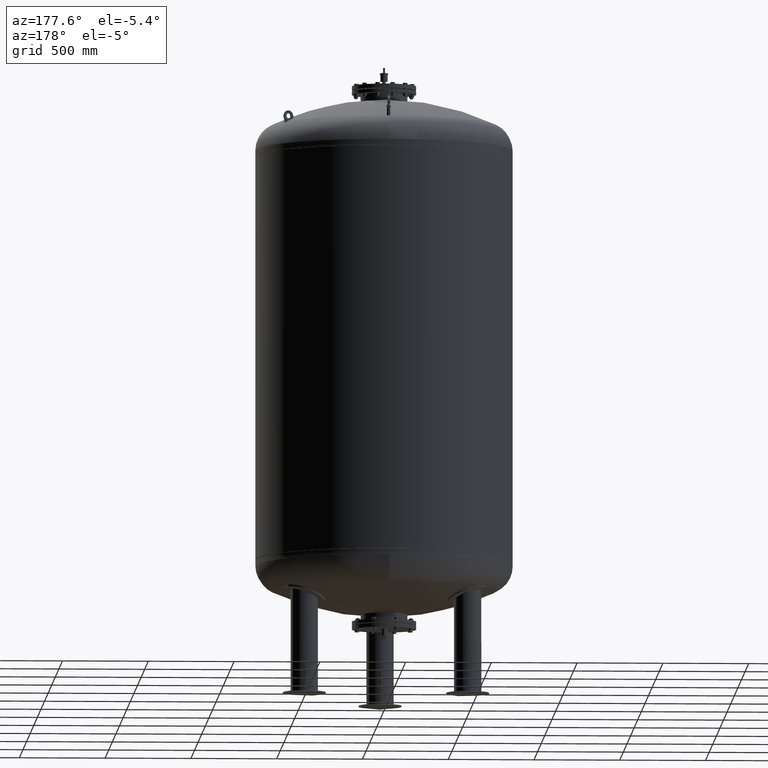
[diagram: clean part render]
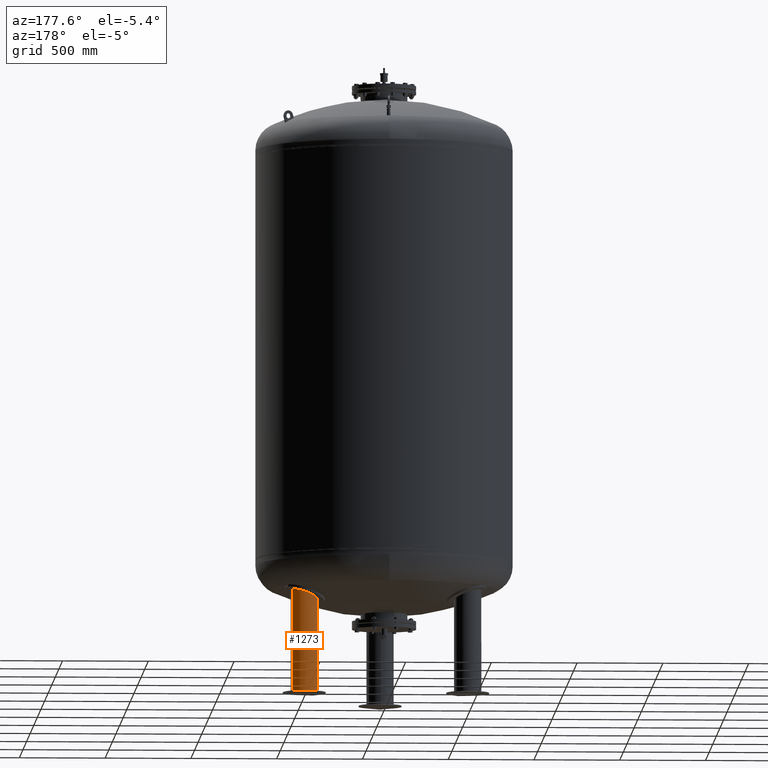
[diagram: same view with one face highlighted and labeled with its STEP entity id]
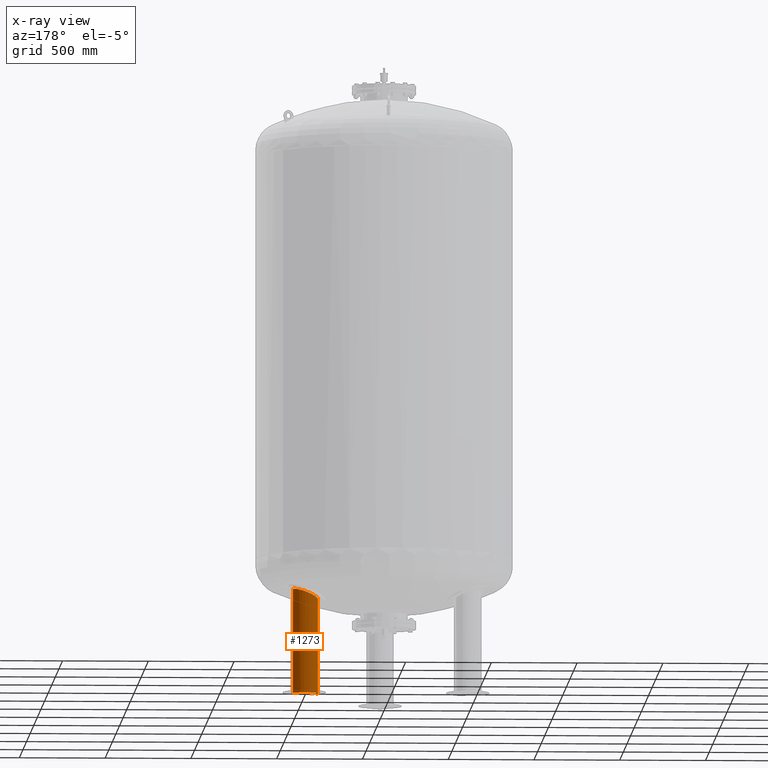
[diagram: x-ray of the same camera — body ghosted, the highlighted face saturated]
A machine part, auxiliary view. The second image highlights one B-rep face of the part: STEP entity #1273.
The next image is the same camera in x-ray: the body ghosted, the highlighted face saturated — about 0% of this face is hidden behind the body in this view.
In plain terms, the highlighted cylindrical surface (edge-blend (fillet) strip) has radius 79.5 mm, axis along (-0, 0, -1).
Its self-contained STEP definition (entity closure, byte-faithful):
#1207=CARTESIAN_POINT('',(476.313972081441250,274.999999999999940,15.815585141290533));
#1208=DIRECTION('',(-9.184851E-017,1.590863E-016,-1.0));
#1209=DIRECTION('',(0.866025403784439,0.500000000000000,0.0));
#1210=AXIS2_PLACEMENT_3D('',#1207,#1208,#1209);
#1211=CYLINDRICAL_SURFACE('',#1210,79.500000000000000);
#1212=CARTESIAN_POINT('',(545.162991682304100,314.749999999999940,11.631170282581067));
#1213=VERTEX_POINT('',#1212);
#1214=CARTESIAN_POINT('',(545.162991682304780,314.750000000000170,619.974328976416250));
#1215=VERTEX_POINT('',#1214);
#1216=CARTESIAN_POINT('',(545.162991682304100,314.749999999999940,11.631170282581067));
#1217=DIRECTION('',(0.0,0.0,1.0));
#1218=VECTOR('',#1217,608.343158693835220);
#1219=LINE('',#1216,#1218);
#1220=EDGE_CURVE('',#1213,#1215,#1219,.T.);
#1221=ORIENTED_EDGE('',*,*,#1220,.F.);
#1222=CARTESIAN_POINT('',(407.464952480578400,235.249999999999940,11.631170282581067));
#1223=VERTEX_POINT('',#1222);
#1224=CARTESIAN_POINT('',(476.313972081441250,274.999999999999940,11.631170282581067));
#1225=DIRECTION('',(0.0,0.0,-1.0));
#1226=DIRECTION('',(0.866025403784439,0.500000000000000,0.0));
#1227=AXIS2_PLACEMENT_3D('',#1224,#1225,#1226);
#1228=CIRCLE('',#1227,79.500000000000000);
#1229=EDGE_CURVE('',#1223,#1213,#1228,.T.);
#1230=ORIENTED_EDGE('',*,*,#1229,.F.);
#1231=CARTESIAN_POINT('',(407.464952480578400,235.249999999999830,557.801446445446690));
#1232=VERTEX_POINT('',#1231);
#1233=CARTESIAN_POINT('',(407.464952480578400,235.249999999999940,11.631170282581067));
#1234=DIRECTION('',(0.0,0.0,1.0));
#1235=VECTOR('',#1234,546.170276162865660);
#1236=LINE('',#1233,#1235);
#1237=EDGE_CURVE('',#1223,#1232,#1236,.T.);
#1238=ORIENTED_EDGE('',*,*,#1237,.T.);
#1239=CARTESIAN_POINT('',(435.923993297311600,343.475540259405990,588.259208461118310));
#1240=VERTEX_POINT('',#1239);
#1241=CARTESIAN_POINT('',(407.464952480578400,235.249999999999830,557.801446445446690));
#1242=CARTESIAN_POINT('',(403.404620725765540,242.282700894921050,557.801446445446690));
#1243=CARTESIAN_POINT('',(400.451610787080200,249.885975801156520,558.277369662588170));
#1244=CARTESIAN_POINT('',(396.597055088747990,267.270620755335590,560.328261777430270));
#1245=CARTESIAN_POINT('',(396.270319464510980,276.954377197880150,562.075596332598020));
#1246=CARTESIAN_POINT('',(399.072489778784760,296.341456745020760,566.734659420112730));
#1247=CARTESIAN_POINT('',(402.373919211337180,305.818108910622580,569.661195647944850));
#1248=CARTESIAN_POINT('',(412.496769615312990,323.583126452498620,576.486089468713540));
#1249=CARTESIAN_POINT('',(419.500370050858520,331.582796994882020,580.391859104990320));
#1250=CARTESIAN_POINT('',(430.379304327032230,339.969799272506860,585.699021239809100));
#1251=CARTESIAN_POINT('',(433.101443881988190,341.810672620973430,586.978453284904280));
#1252=CARTESIAN_POINT('',(435.923993297311600,343.475540259405990,588.259208461118310));
#1253=B_SPLINE_CURVE_WITH_KNOTS('',3,(#1241,#1242,#1243,#1244,#1245,#1246,#1247,#1248,#1249,#1250,#1251,#1252),.UNSPECIFIED.,.F.,.U.,(4,2,2,2,2,4),(25.946274642103887,28.391196783303212,31.323094720106891,34.426409319311013,37.777807879739491,38.832927063684011),.UNSPECIFIED.);
#1254=EDGE_CURVE('',#1232,#1240,#1253,.T.);
#1255=ORIENTED_EDGE('',*,*,#1254,.T.);
#1256=CARTESIAN_POINT('',(435.923993297311600,343.475540259405990,588.259208461118310));
#1257=CARTESIAN_POINT('',(442.620858014037540,347.425654749982700,591.297966296069830));
#1258=CARTESIAN_POINT('',(449.882913637144440,350.384943361649900,594.344322088061060));
#1259=CARTESIAN_POINT('',(468.025368474697360,354.807454012759190,601.394273940897850));
#1260=CARTESIAN_POINT('',(479.095487505130900,355.220505554612940,605.264897102246320));
#1261=CARTESIAN_POINT('',(500.101187832981220,351.546225351953470,611.749699955350710));
#1262=CARTESIAN_POINT('',(509.890893953472470,347.824400099864870,614.383971692484580));
#1263=CARTESIAN_POINT('',(524.123023604612060,338.831776724313730,617.505471067215810));
#1264=CARTESIAN_POINT('',(529.077385518121330,334.809706666959300,618.415766111970470));
#1265=CARTESIAN_POINT('',(538.005689491232830,325.557982821373230,619.656658887407730));
#1266=CARTESIAN_POINT('',(541.918381164990710,320.369830266758530,619.974328976416020));
#1267=CARTESIAN_POINT('',(545.162991682303980,314.749999999999720,619.974328976416020));
#1268=B_SPLINE_CURVE_WITH_KNOTS('',3,(#1256,#1257,#1258,#1259,#1260,#1261,#1262,#1263,#1264,#1265,#1266,#1267),.UNSPECIFIED.,.F.,.U.,(4,2,2,2,2,4),(38.832927063684011,41.336334230459492,44.806614551580793,48.013896662752792,49.941938919734973,51.888705230122902),.UNSPECIFIED.);
#1269=EDGE_CURVE('',#1240,#1215,#1268,.T.);
#1270=ORIENTED_EDGE('',*,*,#1269,.T.);
#1271=EDGE_LOOP('',(#1221,#1230,#1238,#1255,#1270));
#1272=FACE_OUTER_BOUND('',#1271,.T.);
#1273=ADVANCED_FACE('',(#1272),#1211,.T.);